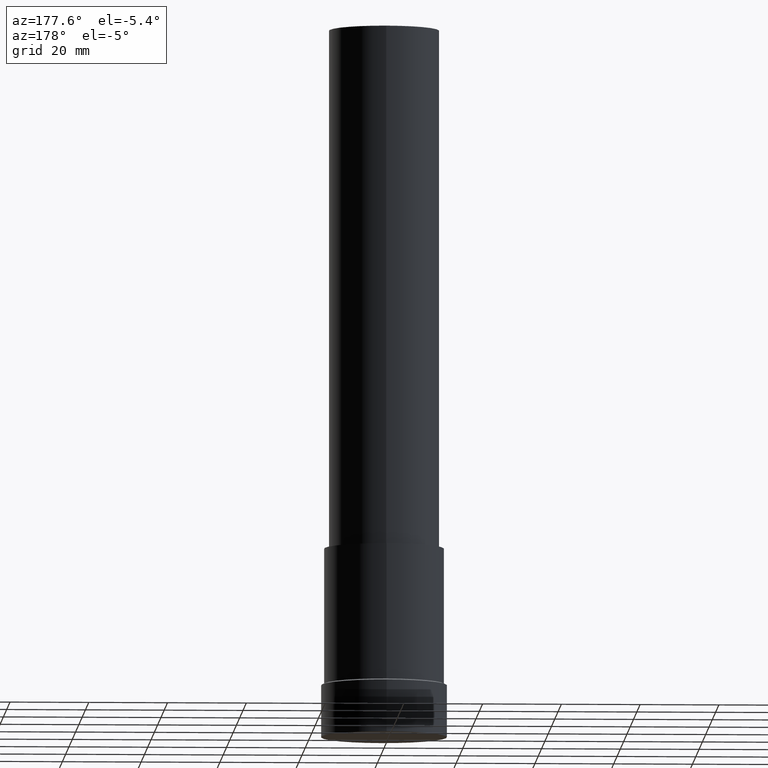
[diagram: clean part render]
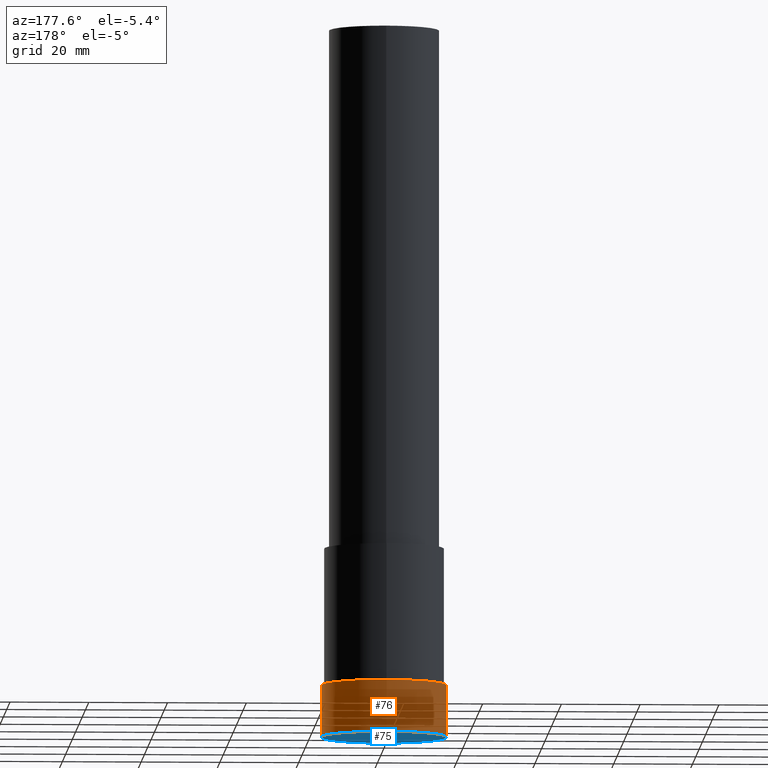
[diagram: same view with the hole feature highlighted: cylindrical wall and planar end face, labeled with their STEP entity ids]
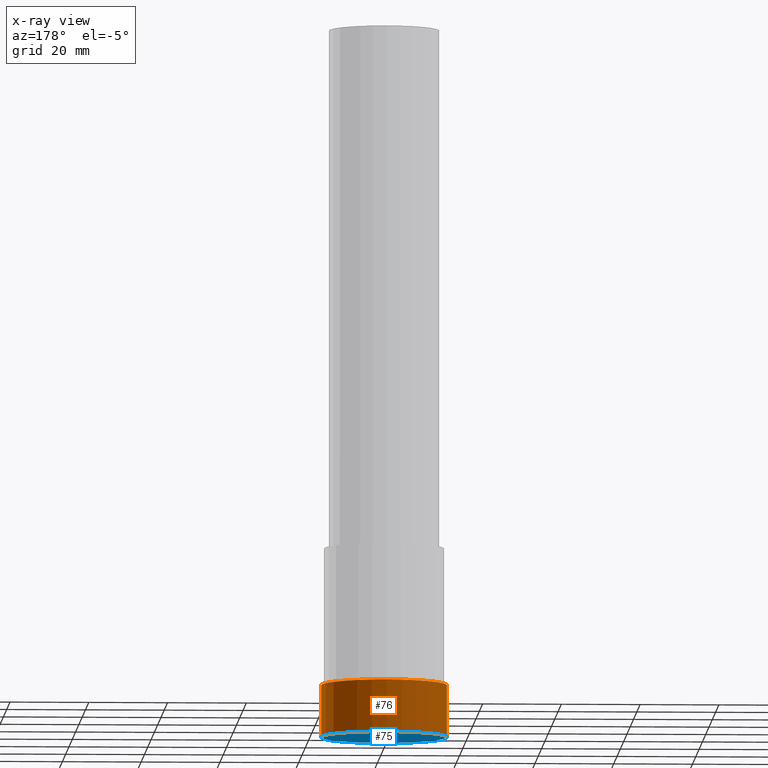
[diagram: x-ray of the same camera — body ghosted, the hole faces saturated]
A machine part, auxiliary view. The highlighted faces form one hole feature of diameter 32 mm: the cylindrical wall (entity #76, orange) and its adjacent planar end face (entity #75, blue) — they share a circular edge in the B-rep.
The next image is the same camera in x-ray (body ghosted, the hole faces saturated) — the bore reads through the body.
Wall:
#76=ADVANCED_FACE('',(#85,#86),#87,.T.);
#85=FACE_BOUND('',#104,.T.);
#86=FACE_BOUND('',#105,.T.);
#87=CYLINDRICAL_SURFACE('',#106,16.0000000000001);
#104=EDGE_LOOP('',(#125));
#105=EDGE_LOOP('',(#126));
#106=AXIS2_PLACEMENT_3D('',#127,#128,#129);
#125=ORIENTED_EDGE('',*,*,#155,.F.);
#126=ORIENTED_EDGE('',*,*,#154,.T.);
#127=CARTESIAN_POINT('',(-4.03982856823137E-016,-4.76673340287307E-019,6.5975407293663));
#128=DIRECTION('',(6.12323399573677E-017,7.22501549744938E-020,-1.0));
#129=DIRECTION('',(-4.83157677681715E-033,1.0,7.22501549744938E-020));
#154=EDGE_CURVE('',#160,#160,#161,.T.);
#155=EDGE_CURVE('',#162,#162,#163,.T.);
#160=VERTEX_POINT('',#172);
#161=CIRCLE('',#173,15.9999999999999);
#162=VERTEX_POINT('',#174);
#163=CIRCLE('',#175,16.0000000000002);
#172=CARTESIAN_POINT('',(0.0,15.9999999999999,0.0));
#173=AXIS2_PLACEMENT_3D('',#184,#185,#186);
#174=CARTESIAN_POINT('',(-8.07965713646273E-016,16.0000000000002,13.1950814587326));
#175=AXIS2_PLACEMENT_3D('',#187,#188,#189);
#184=CARTESIAN_POINT('',(0.0,0.0,0.0));
#185=DIRECTION('',(-6.12323399573676E-017,-7.22501549744945E-020,1.0));
#186=DIRECTION('',(-4.8315767768228E-033,1.0,7.22501549744945E-020));
#187=CARTESIAN_POINT('',(-8.07965713646273E-016,-9.53346680571459E-019,13.1950814587326));
#188=DIRECTION('',(-6.12323399573677E-017,-7.22501549744932E-020,1.0));
#189=DIRECTION('',(-4.83157677681991E-033,1.0,7.22501549744932E-020));
End face:
#75=ADVANCED_FACE('',(#83),#84,.T.);
#83=FACE_OUTER_BOUND('',#102,.T.);
#84=PLANE('',#103);
#102=EDGE_LOOP('',(#121));
#103=AXIS2_PLACEMENT_3D('',#122,#123,#124);
#121=ORIENTED_EDGE('',*,*,#154,.F.);
#122=CARTESIAN_POINT('',(-9.46633086265214E-030,7.99999999999996,1.70530256582424E-013));
#123=DIRECTION('',(6.12323399573677E-017,-2.29701742322887E-014,-1.0));
#124=DIRECTION('',(-1.4016903647407E-030,-1.0,2.29701742322887E-014));
#154=EDGE_CURVE('',#160,#160,#161,.T.);
#160=VERTEX_POINT('',#172);
#161=CIRCLE('',#173,15.9999999999999);
#172=CARTESIAN_POINT('',(0.0,15.9999999999999,0.0));
#173=AXIS2_PLACEMENT_3D('',#184,#185,#186);
#184=CARTESIAN_POINT('',(0.0,0.0,0.0));
#185=DIRECTION('',(-6.12323399573676E-017,-7.22501549744945E-020,1.0));
#186=DIRECTION('',(-4.8315767768228E-033,1.0,7.22501549744945E-020));